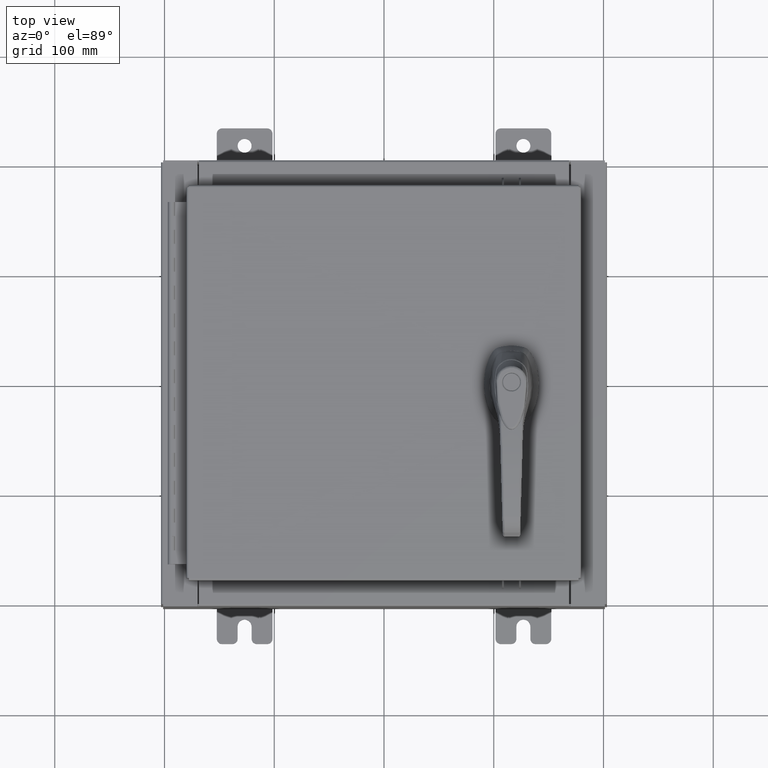
[diagram: clean part render]
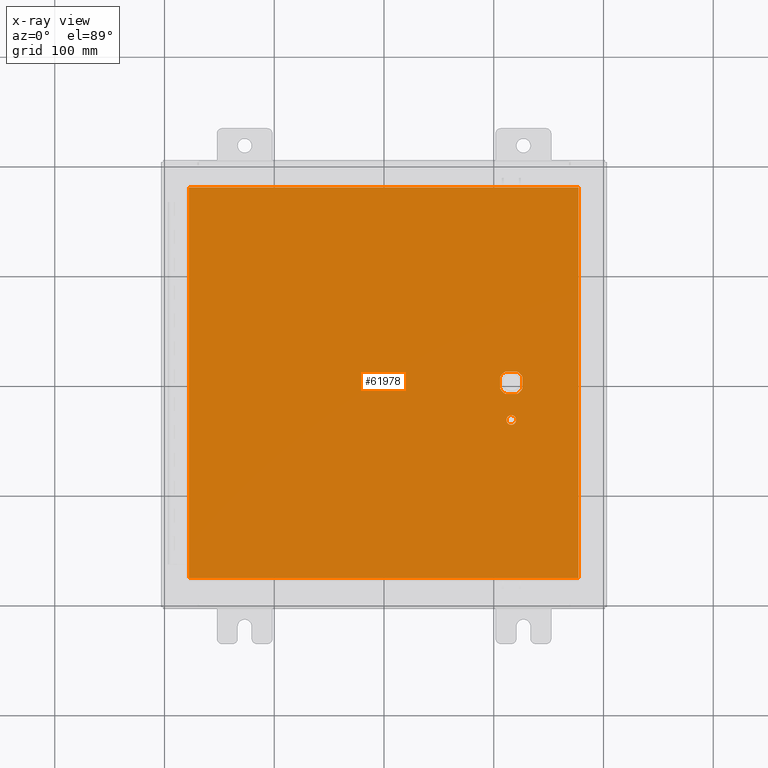
[diagram: x-ray — body ghosted, one internal face saturated and labeled with its STEP entity id]
A machine part, top view, then the same camera in x-ray: the body is ghosted and one INTERNAL B-rep face — a face not visible from any outside direction — is saturated and labeled: STEP entity #61978.
In plain terms, the highlighted planar face has unit normal (0, 0, -1).
Its self-contained STEP definition (entity closure, byte-faithful):
#1494 = ORIENTED_EDGE ( 'NONE', *, *, #48128, .F. ) ;
#1602 = DIRECTION ( 'NONE',  ( -0.0000000000000000000, -0.0000000000000000000, 1.000000000000000000 ) ) ;
#2668 = VECTOR ( 'NONE', #76517, 39.37007874015748100 ) ;
#5279 = LINE ( 'NONE', #26907, #2668 ) ;
#5409 = DIRECTION ( 'NONE',  ( 0.0000000000000000000, 0.0000000000000000000, -1.000000000000000000 ) ) ;
#5520 = DIRECTION ( 'NONE',  ( 0.0000000000000000000, -1.000000000000000000, 0.0000000000000000000 ) ) ;
#5885 = EDGE_CURVE ( 'NONE', #36266, #64898, #73863, .T. ) ;
#7367 = CARTESIAN_POINT ( 'NONE',  ( 6.990299999999998600, -7.006300000000000400, -0.07470000000000000300 ) ) ;
#9460 = EDGE_CURVE ( 'NONE', #33181, #95390, #16533, .T. ) ;
#9740 = VERTEX_POINT ( 'NONE', #19705 ) ;
#12875 = DIRECTION ( 'NONE',  ( -0.0000000000000000000, -0.0000000000000000000, 1.000000000000000000 ) ) ;
#12896 = CARTESIAN_POINT ( 'NONE',  ( 0.0000000000000000000, 0.4029999999999252000, -0.07470000000000003000 ) ) ;
#13738 = ORIENTED_EDGE ( 'NONE', *, *, #53763, .F. ) ;
#15596 = DIRECTION ( 'NONE',  ( 0.0000000000000000000, -1.000000000000000000, 0.0000000000000000000 ) ) ;
#16196 = VERTEX_POINT ( 'NONE', #34994 ) ;
#16533 = CIRCLE ( 'NONE', #27591, 0.4499999999999156900 ) ;
#18969 = AXIS2_PLACEMENT_3D ( 'NONE', #30835, #5409, #96993 ) ;
#19705 = CARTESIAN_POINT ( 'NONE',  ( 6.990299999999997700, 7.006300000000000400, -0.07470000000000000300 ) ) ;
#21372 = VECTOR ( 'NONE', #104120, 39.37007874015748100 ) ;
#21400 = EDGE_CURVE ( 'NONE', #39357, #50834, #60091, .T. ) ;
#22434 = PLANE ( 'NONE',  #18969 ) ;
#23780 = CARTESIAN_POINT ( 'NONE',  ( 4.578000000000002100, 0.0000000000000000000, -0.07470000000000003000 ) ) ;
#23980 = EDGE_CURVE ( 'NONE', #50834, #102571, #43471, .T. ) ;
#24716 = EDGE_CURVE ( 'NONE', #60581, #84235, #78326, .T. ) ;
#25284 = FACE_OUTER_BOUND ( 'NONE', #43780, .T. ) ;
#26907 = CARTESIAN_POINT ( 'NONE',  ( 4.175000000000076200, 0.0000000000000000000, -0.07470000000000003000 ) ) ;
#27363 = ORIENTED_EDGE ( 'NONE', *, *, #9460, .T. ) ;
#27591 = AXIS2_PLACEMENT_3D ( 'NONE', #23780, #81734, #32166 ) ;
#29230 = EDGE_CURVE ( 'NONE', #104469, #36266, #5279, .T. ) ;
#30835 = CARTESIAN_POINT ( 'NONE',  ( 0.0000000000000000000, 0.0000000000000000000, -0.07470000000000000300 ) ) ;
#31892 = VECTOR ( 'NONE', #15596, 39.37007874015748100 ) ;
#32166 = DIRECTION ( 'NONE',  ( -1.000000000000000000, 0.0000000000000000000, 0.0000000000000000000 ) ) ;
#32313 = CARTESIAN_POINT ( 'NONE',  ( 4.377772629243692900, 0.4029999999999252000, -0.07470000000000003000 ) ) ;
#33002 = ORIENTED_EDGE ( 'NONE', *, *, #61450, .F. ) ;
#33181 = VERTEX_POINT ( 'NONE', #88237 ) ;
#33818 = VECTOR ( 'NONE', #94450, 39.37007874015748100 ) ;
#34479 = CARTESIAN_POINT ( 'NONE',  ( 4.749500000000002100, -1.338000000000000100, -0.07470000000000003000 ) ) ;
#34669 = CARTESIAN_POINT ( 'NONE',  ( 4.175000000000076200, -0.2002273707563079800, -0.07470000000000003000 ) ) ;
#34935 = ORIENTED_EDGE ( 'NONE', *, *, #23980, .T. ) ;
#34994 = CARTESIAN_POINT ( 'NONE',  ( 4.406500000000002100, -1.338000000000000100, -0.07470000000000003000 ) ) ;
#35106 = EDGE_LOOP ( 'NONE', ( #63487, #51384 ) ) ;
#35294 = CARTESIAN_POINT ( 'NONE',  ( 4.578000000000002100, -1.338000000000000100, -0.07470000000000003000 ) ) ;
#36266 = VERTEX_POINT ( 'NONE', #34669 ) ;
#36367 = LINE ( 'NONE', #86129, #33818 ) ;
#37186 = ORIENTED_EDGE ( 'NONE', *, *, #24716, .F. ) ;
#37333 = CIRCLE ( 'NONE', #55810, 0.4499999999999156900 ) ;
#39357 = VERTEX_POINT ( 'NONE', #46333 ) ;
#40314 = CARTESIAN_POINT ( 'NONE',  ( 4.578000000000002100, -1.338000000000000100, -0.07470000000000003000 ) ) ;
#43471 = LINE ( 'NONE', #12896, #21372 ) ;
#43644 = DIRECTION ( 'NONE',  ( -1.000000000000000000, 0.0000000000000000000, 0.0000000000000000000 ) ) ;
#43750 = CIRCLE ( 'NONE', #65832, 0.1715000000000000700 ) ;
#43780 = EDGE_LOOP ( 'NONE', ( #13738, #1494, #37186, #91940 ) ) ;
#45828 = DIRECTION ( 'NONE',  ( 0.0000000000000000000, 1.000000000000000000, 0.0000000000000000000 ) ) ;
#46333 = CARTESIAN_POINT ( 'NONE',  ( 4.980999999999927900, 0.2002273707563080300, -0.07470000000000003000 ) ) ;
#46603 = CARTESIAN_POINT ( 'NONE',  ( -6.990300000000000400, -7.006300000000000400, -0.07470000000000000300 ) ) ;
#47384 = FACE_BOUND ( 'NONE', #100364, .T. ) ;
#48128 = EDGE_CURVE ( 'NONE', #84235, #74824, #105538, .T. ) ;
#48659 = CARTESIAN_POINT ( 'NONE',  ( 4.980999999999927900, 0.0000000000000000000, -0.07470000000000003000 ) ) ;
#48685 = DIRECTION ( 'NONE',  ( -1.000000000000000000, 0.0000000000000000000, 0.0000000000000000000 ) ) ;
#49113 = CARTESIAN_POINT ( 'NONE',  ( 4.578000000000002100, 0.0000000000000000000, -0.07470000000000003000 ) ) ;
#49976 = FACE_BOUND ( 'NONE', #35106, .T. ) ;
#50834 = VERTEX_POINT ( 'NONE', #94009 ) ;
#51292 = CARTESIAN_POINT ( 'NONE',  ( 4.578000000000002100, 0.0000000000000000000, -0.07470000000000003000 ) ) ;
#51384 = ORIENTED_EDGE ( 'NONE', *, *, #75866, .T. ) ;
#52676 = CIRCLE ( 'NONE', #78252, 0.1715000000000000700 ) ;
#53763 = EDGE_CURVE ( 'NONE', #74824, #9740, #99933, .T. ) ;
#53876 = LINE ( 'NONE', #48659, #31892 ) ;
#54147 = CARTESIAN_POINT ( 'NONE',  ( 6.990299999999998600, -7.006300000000000400, -0.07470000000000021100 ) ) ;
#55810 = AXIS2_PLACEMENT_3D ( 'NONE', #62542, #12875, #70869 ) ;
#57002 = ORIENTED_EDGE ( 'NONE', *, *, #21400, .T. ) ;
#57413 = DIRECTION ( 'NONE',  ( -1.000000000000000000, 8.881784197001256300E-016, 0.0000000000000000000 ) ) ;
#59626 = DIRECTION ( 'NONE',  ( -1.000000000000000000, 0.0000000000000000000, 0.0000000000000000000 ) ) ;
#60091 = CIRCLE ( 'NONE', #105134, 0.4499999999999156900 ) ;
#60581 = VERTEX_POINT ( 'NONE', #66559 ) ;
#60759 = VECTOR ( 'NONE', #81510, 39.37007874015748100 ) ;
#60805 = AXIS2_PLACEMENT_3D ( 'NONE', #49113, #106878, #57413 ) ;
#61450 = EDGE_CURVE ( 'NONE', #39357, #95390, #53876, .T. ) ;
#61723 = ORIENTED_EDGE ( 'NONE', *, *, #85912, .T. ) ;
#61978 = ADVANCED_FACE ( 'NONE', ( #49976, #25284, #47384 ), #22434, .T. ) ;
#62542 = CARTESIAN_POINT ( 'NONE',  ( 4.578000000000002100, 0.0000000000000000000, -0.07470000000000003000 ) ) ;
#63370 = ORIENTED_EDGE ( 'NONE', *, *, #101160, .T. ) ;
#63487 = ORIENTED_EDGE ( 'NONE', *, *, #77053, .T. ) ;
#64493 = ORIENTED_EDGE ( 'NONE', *, *, #5885, .T. ) ;
#64898 = VERTEX_POINT ( 'NONE', #95529 ) ;
#65832 = AXIS2_PLACEMENT_3D ( 'NONE', #40314, #98167, #48685 ) ;
#66559 = CARTESIAN_POINT ( 'NONE',  ( -6.990300000000001300, 7.006299999999998600, -0.07470000000000000300 ) ) ;
#69073 = ORIENTED_EDGE ( 'NONE', *, *, #29230, .T. ) ;
#69355 = DIRECTION ( 'NONE',  ( 1.000000000000000000, -0.0000000000000000000, -0.0000000000000000000 ) ) ;
#70869 = DIRECTION ( 'NONE',  ( -1.000000000000000000, 0.0000000000000000000, 0.0000000000000000000 ) ) ;
#71853 = CARTESIAN_POINT ( 'NONE',  ( -6.990300000000001300, 7.006300000000000400, -0.07469999999999965600 ) ) ;
#72530 = CARTESIAN_POINT ( 'NONE',  ( 4.980999999999927900, -0.2002273707563080300, -0.07470000000000003000 ) ) ;
#73199 = CARTESIAN_POINT ( 'NONE',  ( 0.0000000000000000000, -0.4029999999999252000, -0.07470000000000003000 ) ) ;
#73863 = CIRCLE ( 'NONE', #60805, 0.4499999999999156900 ) ;
#74824 = VERTEX_POINT ( 'NONE', #7367 ) ;
#75866 = EDGE_CURVE ( 'NONE', #16196, #82700, #43750, .T. ) ;
#76517 = DIRECTION ( 'NONE',  ( 0.0000000000000000000, -1.000000000000000000, 0.0000000000000000000 ) ) ;
#77053 = EDGE_CURVE ( 'NONE', #82700, #16196, #52676, .T. ) ;
#78252 = AXIS2_PLACEMENT_3D ( 'NONE', #35294, #93162, #43644 ) ;
#78326 = LINE ( 'NONE', #71853, #95108 ) ;
#81510 = DIRECTION ( 'NONE',  ( 1.000000000000000000, 0.0000000000000000000, 0.0000000000000000000 ) ) ;
#81734 = DIRECTION ( 'NONE',  ( -0.0000000000000000000, -0.0000000000000000000, 1.000000000000000000 ) ) ;
#82700 = VERTEX_POINT ( 'NONE', #34479 ) ;
#82735 = LINE ( 'NONE', #73199, #60759 ) ;
#82791 = EDGE_CURVE ( 'NONE', #9740, #60581, #36367, .T. ) ;
#83551 = VECTOR ( 'NONE', #69355, 39.37007874015748100 ) ;
#84235 = VERTEX_POINT ( 'NONE', #46603 ) ;
#85912 = EDGE_CURVE ( 'NONE', #102571, #104469, #37333, .T. ) ;
#86129 = CARTESIAN_POINT ( 'NONE',  ( 6.990299999999998600, 7.006300000000000400, -0.07470000000000021100 ) ) ;
#88237 = CARTESIAN_POINT ( 'NONE',  ( 4.778227370756312100, -0.4029999999999252000, -0.07470000000000003000 ) ) ;
#91940 = ORIENTED_EDGE ( 'NONE', *, *, #82791, .F. ) ;
#93162 = DIRECTION ( 'NONE',  ( -0.0000000000000000000, -0.0000000000000000000, 1.000000000000000000 ) ) ;
#94009 = CARTESIAN_POINT ( 'NONE',  ( 4.778227370756312100, 0.4029999999999250300, -0.07470000000000003000 ) ) ;
#94450 = DIRECTION ( 'NONE',  ( -1.000000000000000000, -0.0000000000000000000, -0.0000000000000000000 ) ) ;
#95108 = VECTOR ( 'NONE', #5520, 39.37007874015748100 ) ;
#95390 = VERTEX_POINT ( 'NONE', #72530 ) ;
#95496 = CARTESIAN_POINT ( 'NONE',  ( 4.175000000000076200, 0.2002273707563080300, -0.07470000000000003000 ) ) ;
#95529 = CARTESIAN_POINT ( 'NONE',  ( 4.377772629243692900, -0.4029999999999250300, -0.07470000000000003000 ) ) ;
#96993 = DIRECTION ( 'NONE',  ( -1.000000000000000000, 0.0000000000000000000, -0.0000000000000000000 ) ) ;
#97325 = VECTOR ( 'NONE', #45828, 39.37007874015748100 ) ;
#98167 = DIRECTION ( 'NONE',  ( -0.0000000000000000000, -0.0000000000000000000, 1.000000000000000000 ) ) ;
#99933 = LINE ( 'NONE', #54147, #97325 ) ;
#100364 = EDGE_LOOP ( 'NONE', ( #27363, #33002, #57002, #34935, #61723, #69073, #64493, #63370 ) ) ;
#101160 = EDGE_CURVE ( 'NONE', #64898, #33181, #82735, .T. ) ;
#102248 = CARTESIAN_POINT ( 'NONE',  ( -6.990300000000001300, -7.006300000000000400, -0.07470000000000021100 ) ) ;
#102571 = VERTEX_POINT ( 'NONE', #32313 ) ;
#104120 = DIRECTION ( 'NONE',  ( -1.000000000000000000, 0.0000000000000000000, 0.0000000000000000000 ) ) ;
#104469 = VERTEX_POINT ( 'NONE', #95496 ) ;
#105134 = AXIS2_PLACEMENT_3D ( 'NONE', #51292, #1602, #59626 ) ;
#105538 = LINE ( 'NONE', #102248, #83551 ) ;
#106878 = DIRECTION ( 'NONE',  ( -0.0000000000000000000, -0.0000000000000000000, 1.000000000000000000 ) ) ;